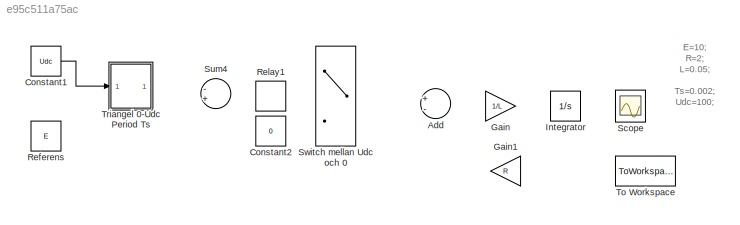
MODEL slx_e95c511a75ac
KIND model
CONFIG AbsTol = auto
CONFIG EnableMultiTasking = on
CONFIG FixedStep = auto
CONFIG MaxStep = auto
CONFIG MinStep = auto
CONFIG RelTol = 1e-3
CONFIG SampleTimeConstraint = Unconstrained
CONFIG Solver = ode45
CONFIG SolverName = ode45
CONFIG StartTime = 0.0
CONFIG StopTime = 0.2
BLOCK [Sum] Add
  InputSameDT = off
  Inputs = +-
  OutDataTypeStr = Inherit: Inherit via internal rule
  Ports = [2, 1]
  SaturateOnIntegerOverflow = off
BLOCK [Constant] Constant1
  Value = Udc
BLOCK [Constant] Constant2
  Value = 0
BLOCK [Gain] Gain
  Gain = 1/L
  OutDataTypeStr = Inherit: Inherit via internal rule
  ParamDataTypeStr = Inherit: Inherit via internal rule
  SaturateOnIntegerOverflow = off
BLOCK [Gain] Gain1
  Gain = R
  OutDataTypeStr = Inherit: Inherit via internal rule
  ParamDataTypeStr = Inherit: Inherit via internal rule
  SaturateOnIntegerOverflow = off
BLOCK [Integrator] Integrator
  Ports = [1, 1]
BLOCK [Constant] Referens
  Value = E
BLOCK [Relay] Relay1
  OffOutputValue = -1
BLOCK [Scope] Scope
  NumInputPorts = 1
  Ports = [1]
  ScopeSpecificationString = C++SS(StrPVP('Location','[109, 139, 433, 378]'),StrPVP('Open','off'),StrPVP('ZoomMode','xonly'),MxPVP('AxesTitles',53,'struct(''axes1'',''%<SignalLabel>'')'),StrPVP('TimeRange','0.2'),StrPVP('YMin','-1'),StrPVP('YMax','6'),StrPVP('DataFormat','StructureWithTime'),StrPVP('BlockParamSampleTime','0'),StrPVP('LimitDataPoints','on'),StrPVP('Decimation','1'),StrPVP('BlockParamSampleInput','off'))
BLOCK [Sum] Sum4
  Inputs = -+
  Ports = [2, 1]
BLOCK [Switch] Switch mellan Udc och 0
BLOCK [ToWorkspace] To Workspace
  MaxDataPoints = inf
  Ports = [1]
  SampleTime = -1
  VariableName = irlpwm
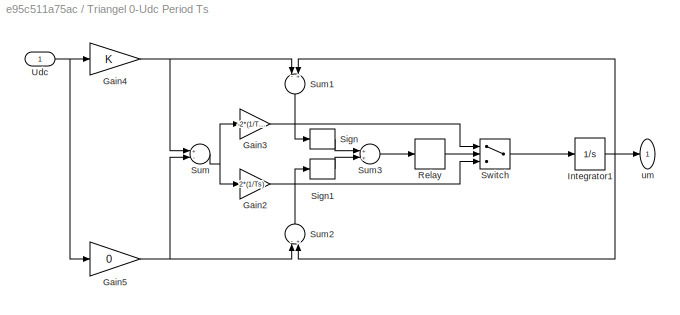
BLOCK [SubSystem] Triangel 0-Udc Period Ts
  Ports = [1, 1]
  RequestExecContextInheritance = off
  Variant = off
BLOCK [Gain] Triangel 0-Udc Period Ts/Gain2
  Gain = 2*(1/Ts)
BLOCK [Gain] Triangel 0-Udc Period Ts/Gain3
  Gain = -2*(1/Ts)
BLOCK [Gain] Triangel 0-Udc Period Ts/Gain4
BLOCK [Gain] Triangel 0-Udc Period Ts/Gain5
  Gain = 0
BLOCK [Integrator] Triangel 0-Udc Period Ts/Integrator1
  Ports = [1, 1]
BLOCK [Relay] Triangel 0-Udc Period Ts/Relay
  OffOutputValue = -1
  OffSwitchValue = -1
  OnSwitchValue = 1
BLOCK [Signum] Triangel 0-Udc Period Ts/Sign
BLOCK [Signum] Triangel 0-Udc Period Ts/Sign1
BLOCK [Sum] Triangel 0-Udc Period Ts/Sum
  Inputs = +-
  Ports = [2, 1]
BLOCK [Sum] Triangel 0-Udc Period Ts/Sum1
  Inputs = -+
  Ports = [2, 1]
BLOCK [Sum] Triangel 0-Udc Period Ts/Sum2
  Inputs = -+
  Ports = [2, 1]
BLOCK [Sum] Triangel 0-Udc Period Ts/Sum3
  Ports = [2, 1]
BLOCK [Switch] Triangel 0-Udc Period Ts/Switch
BLOCK [Inport] Triangel 0-Udc Period Ts/Udc
  IconDisplay = Port number
BLOCK [Outport] Triangel 0-Udc Period Ts/um
  IconDisplay = Port number
ANNOTATION (root): E=10; R=2; L=0.05; Ts=0.002; Udc=100;
LINE Constant1:1 -> Triangel 0-Udc Period Ts:1
LINE Triangel 0-Udc Period Ts/Gain2:1 -> Triangel 0-Udc Period Ts/Switch:3
LINE Triangel 0-Udc Period Ts/Gain3:1 -> Triangel 0-Udc Period Ts/Switch:1
NET Triangel 0-Udc Period Ts/Gain4:1 -> Triangel 0-Udc Period Ts/Sum1:1, Triangel 0-Udc Period Ts/Sum:1
NET Triangel 0-Udc Period Ts/Gain5:1 -> Triangel 0-Udc Period Ts/Sum2:1, Triangel 0-Udc Period Ts/Sum:2
NET Triangel 0-Udc Period Ts/Integrator1:1 -> Triangel 0-Udc Period Ts/Sum1:2, Triangel 0-Udc Period Ts/Sum2:2, Triangel 0-Udc Period Ts/um:1
LINE Triangel 0-Udc Period Ts/Relay:1 -> Triangel 0-Udc Period Ts/Switch:2
LINE Triangel 0-Udc Period Ts/Sign1:1 -> Triangel 0-Udc Period Ts/Sum3:2
LINE Triangel 0-Udc Period Ts/Sign:1 -> Triangel 0-Udc Period Ts/Sum3:1
LINE Triangel 0-Udc Period Ts/Sum1:1 -> Triangel 0-Udc Period Ts/Sign:1
LINE Triangel 0-Udc Period Ts/Sum2:1 -> Triangel 0-Udc Period Ts/Sign1:1
LINE Triangel 0-Udc Period Ts/Sum3:1 -> Triangel 0-Udc Period Ts/Relay:1
NET Triangel 0-Udc Period Ts/Sum:1 -> Triangel 0-Udc Period Ts/Gain2:1, Triangel 0-Udc Period Ts/Gain3:1
LINE Triangel 0-Udc Period Ts/Switch:1 -> Triangel 0-Udc Period Ts/Integrator1:1
NET Triangel 0-Udc Period Ts/Udc:1 -> Triangel 0-Udc Period Ts/Gain4:1, Triangel 0-Udc Period Ts/Gain5:1
note: NET lines group one-source signal fan-out (src -> all destinations, sorted); 1:1 wires keep LINE
